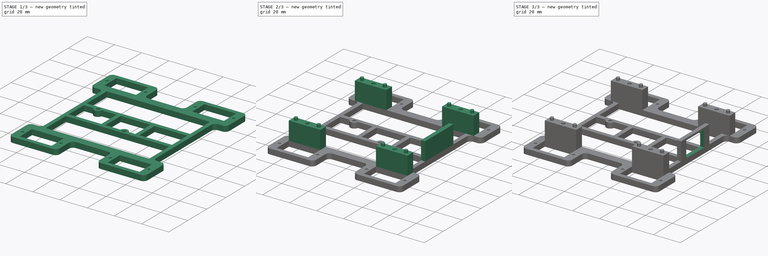
[diagram: build sequence overview — one tinted view per stage of 3, left to right]
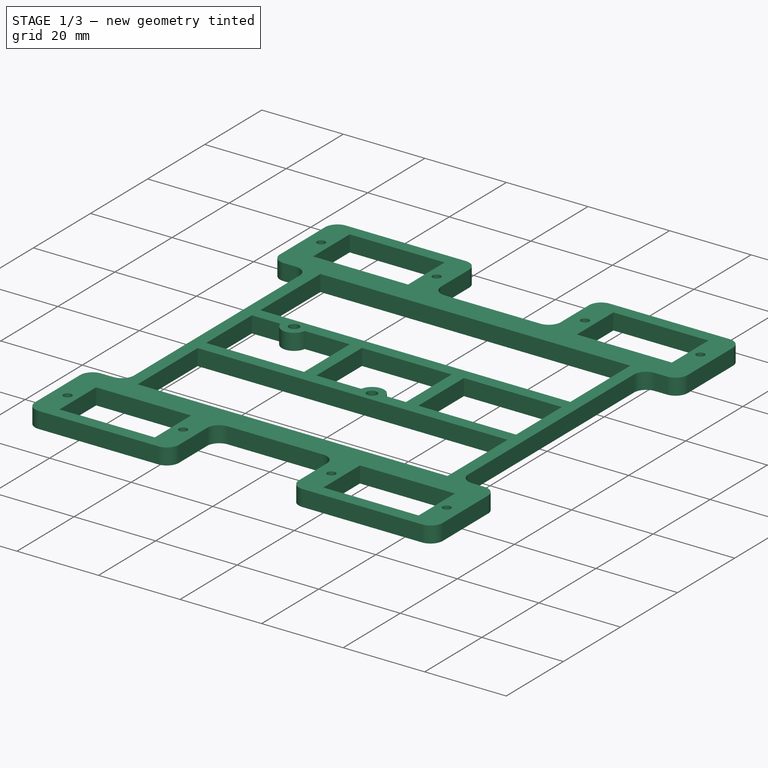
[diagram: stage 1 of 3 — iso view after this stage's code; geometry added in this stage tinted green]
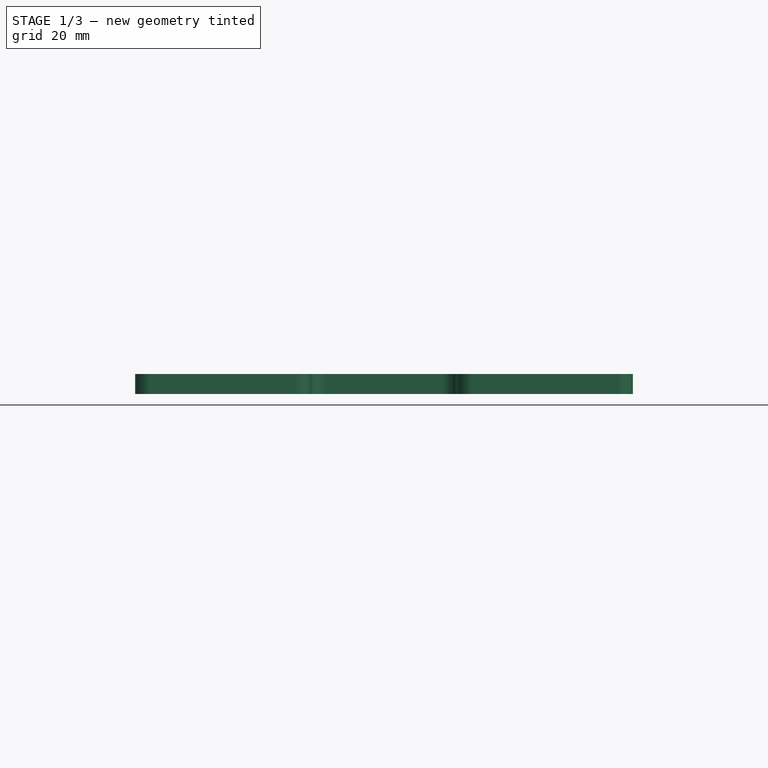
[diagram: stage 1 of 3 — front view after this stage's code; geometry added in this stage tinted green]
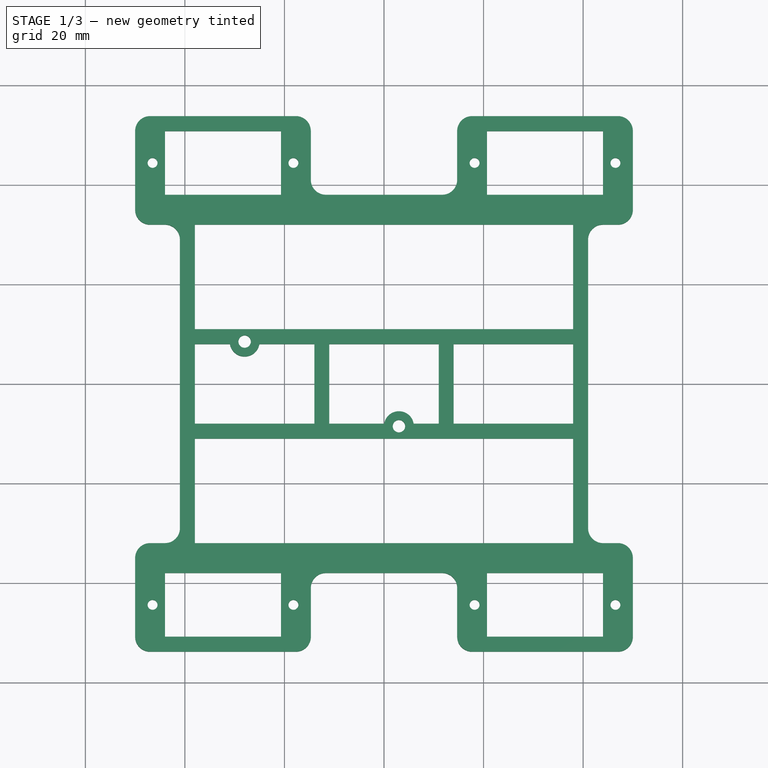
[diagram: stage 1 of 3 — top view after this stage's code; geometry added in this stage tinted green]
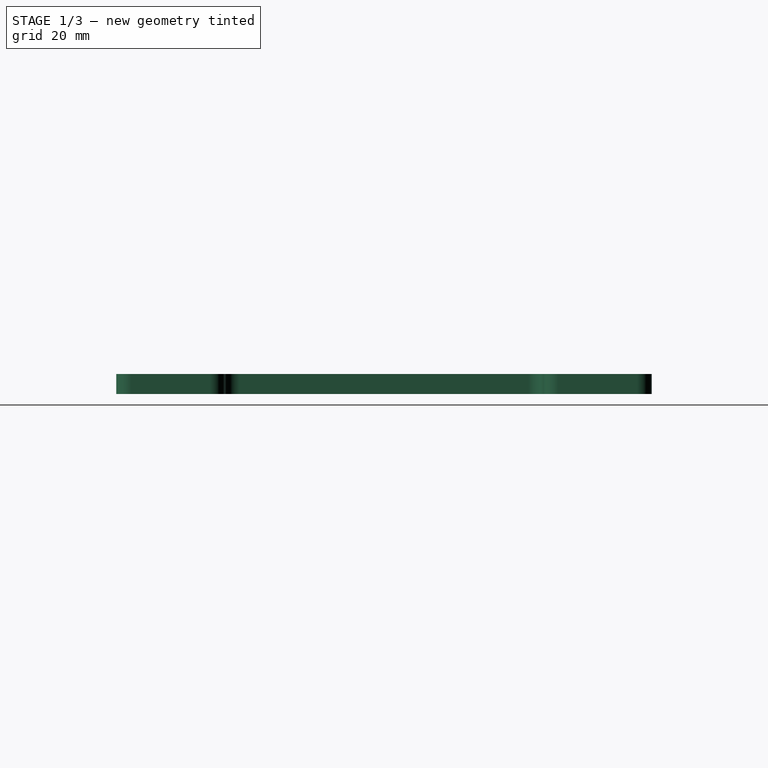
[diagram: stage 1 of 3 — right view after this stage's code; geometry added in this stage tinted green]
FCSTD DOCUMENT  (FreeCAD 0.21R33771 (Git))
Label: Шаси основа
License: All rights reserved
LicenseURL: https://en.wikipedia.org/wiki/All_rights_reserved
objects: Sketcher::SketchObject×7, PartDesign::Pocket×4, PartDesign::Pad×3, PartDesign::Body×1
note: 22 computed .brp shape members not serialized (recipe doc carries the construction recipe); baked Part::Feature solids carry a one-line shape summary decoded from their .brp

FEATURE [Sketcher::SketchObject] Sketch  label="Основа чертеж"
  FullyConstrained = true
  MapMode = 5
  Support = -> [XY_Plane]
  sketch-geometry (91):
    g0: LineSegment StartX=-11.7 StartY=38 StartZ=0 EndX=11.7 EndY=38 EndZ=0
    g1: LineSegment StartX=14.7 StartY=41 StartZ=0 EndX=14.7 EndY=50.8 EndZ=0
    g2: LineSegment StartX=17.7 StartY=53.8 StartZ=0 EndX=47 EndY=53.8 EndZ=0
    g3: LineSegment StartX=47 StartY=-53.8 StartZ=0 EndX=17.7 EndY=-53.8 EndZ=0
    g4: LineSegment StartX=14.7 StartY=-50.8 StartZ=0 EndX=14.7 EndY=-41 EndZ=0
    g5: LineSegment StartX=11.7 StartY=-38 StartZ=0 EndX=-11.7 EndY=-38 EndZ=0
    g6: LineSegment StartX=-14.7 StartY=-41 StartZ=0 EndX=-14.7 EndY=-50.8 EndZ=0
    g7: LineSegment StartX=-17.7 StartY=-53.8 StartZ=0 EndX=-47 EndY=-53.8 EndZ=0
    g8: LineSegment StartX=-47 StartY=53.8 StartZ=0 EndX=-17.7 EndY=53.8 EndZ=0
    g9: LineSegment StartX=-14.7 StartY=50.8 StartZ=0 EndX=-14.7 EndY=41 EndZ=0
    g10: ArcOfCircle CenterX=-17.7 CenterY=-50.8 CenterZ=0 NormalX=0 NormalY=0 NormalZ=1 AngleXU=0 Radius=3 StartAngle=4.71239 EndAngle=6.28319
    g11: ArcOfCircle CenterX=17.7 CenterY=-50.8 CenterZ=0 NormalX=0 NormalY=0 NormalZ=1 AngleXU=0 Radius=3 StartAngle=3.14159 EndAngle=4.71239
    g12: ArcOfCircle CenterX=11.7 CenterY=-41 CenterZ=0 NormalX=0 NormalY=0 NormalZ=1 AngleXU=0 Radius=3 StartAngle=3e-16 EndAngle=1.5708
    g13: ArcOfCircle CenterX=-11.7 CenterY=-41 CenterZ=0 NormalX=0 NormalY=0 NormalZ=1 AngleXU=0 Radius=3 StartAngle=1.5708 EndAngle=3.14159
    g14: ArcOfCircle CenterX=-11.7 CenterY=41 CenterZ=0 NormalX=0 NormalY=0 NormalZ=1 AngleXU=0 Radius=3 StartAngle=3.14159 EndAngle=4.71239
    g15: ArcOfCircle CenterX=11.7 CenterY=41 CenterZ=0 NormalX=0 NormalY=0 NormalZ=1 AngleXU=0 Radius=3 StartAngle=4.71239 EndAngle=6.28319
    g16: ArcOfCircle CenterX=-17.7 CenterY=50.8 CenterZ=0 NormalX=0 NormalY=0 NormalZ=1 AngleXU=0 Radius=3 StartAngle=3e-16 EndAngle=1.5708
    g17: ArcOfCircle CenterX=17.7 CenterY=50.8 CenterZ=0 NormalX=0 NormalY=0 NormalZ=1 AngleXU=0 Radius=3 StartAngle=1.5708 EndAngle=3.14159
    g18: ArcOfCircle CenterX=47 CenterY=50.8 CenterZ=0 NormalX=0 NormalY=0 NormalZ=1 AngleXU=0 Radius=3 StartAngle=6.97719e-09 EndAngle=1.5708
    g19: LineSegment StartX=-44 StartY=50.8 StartZ=0 EndX=-20.7 EndY=50.8 EndZ=0
    g20: LineSegment StartX=-20.7 StartY=50.8 StartZ=0 EndX=-20.7 EndY=38 EndZ=0
    g21: LineSegment StartX=-20.7 StartY=38 StartZ=0 EndX=-44 EndY=38 EndZ=0
    g22: LineSegment StartX=-44 StartY=38 StartZ=0 EndX=-44 EndY=50.8 EndZ=0
    g23: Circle CenterX=-46.5 CenterY=44.4 CenterZ=0 NormalX=0 NormalY=0 NormalZ=1 AngleXU=0 Radius=1
    g24: Circle CenterX=-18.2 CenterY=44.4 CenterZ=0 NormalX=0 NormalY=0 NormalZ=1 AngleXU=0 Radius=1
    g25: LineSegment StartX=20.7 StartY=50.8 StartZ=0 EndX=44 EndY=50.8 EndZ=0
    g26: LineSegment StartX=44 StartY=50.8 StartZ=0 EndX=44 EndY=38 EndZ=0
    g27: LineSegment StartX=44 StartY=38 StartZ=0 EndX=20.7 EndY=38 EndZ=0
    g28: LineSegment StartX=20.7 StartY=38 StartZ=0 EndX=20.7 EndY=50.8 EndZ=0
    g29: Circle CenterX=18.2 CenterY=44.4 CenterZ=0 NormalX=0 NormalY=0 NormalZ=1 AngleXU=0 Radius=1
    g30: Circle CenterX=46.5 CenterY=44.4 CenterZ=0 NormalX=0 NormalY=0 NormalZ=1 AngleXU=0 Radius=1
    g31: LineSegment StartX=20.7 StartY=-38 StartZ=0 EndX=44 EndY=-38 EndZ=0
    g32: LineSegment StartX=44 StartY=-38 StartZ=0 EndX=44 EndY=-50.8 EndZ=0
    g33: LineSegment StartX=44 StartY=-50.8 StartZ=0 EndX=20.7 EndY=-50.8 EndZ=0
    g34: LineSegment StartX=20.7 StartY=-50.8 StartZ=0 EndX=20.7 EndY=-38 EndZ=0
    g35: LineSegment StartX=-44 StartY=-38 StartZ=0 EndX=-20.7 EndY=-38 EndZ=0
    g36: LineSegment StartX=-20.7 StartY=-38 StartZ=0 EndX=-20.7 EndY=-50.8 EndZ=0
    g37: LineSegment StartX=-20.7 StartY=-50.8 StartZ=0 EndX=-44 EndY=-50.8 EndZ=0
    g38: LineSegment StartX=-44 StartY=-50.8 StartZ=0 EndX=-44 EndY=-38 EndZ=0
    g39: Circle CenterX=-46.5 CenterY=-44.4 CenterZ=0 NormalX=0 NormalY=0 NormalZ=1 AngleXU=0 Radius=1
    g40: Circle CenterX=-18.2 CenterY=-44.4 CenterZ=0 NormalX=0 NormalY=0 NormalZ=1 AngleXU=0 Radius=1
    g41: Circle CenterX=18.2 CenterY=-44.4 CenterZ=0 NormalX=0 NormalY=0 NormalZ=1 AngleXU=0 Radius=1
    g42: Circle CenterX=46.5 CenterY=-44.4 CenterZ=0 NormalX=0 NormalY=0 NormalZ=1 AngleXU=0 Radius=1
    g43: LineSegment StartX=-50 StartY=50.8 StartZ=0 EndX=-50 EndY=35 EndZ=0
    g44: LineSegment StartX=50 StartY=50.8 StartZ=0 EndX=50 EndY=35 EndZ=0
    g45: ArcOfCircle CenterX=-47 CenterY=50.8 CenterZ=0 NormalX=0 NormalY=0 NormalZ=1 AngleXU=0 Radius=3 StartAngle=1.5708 EndAngle=3.14159
    g46: ArcOfCircle CenterX=-47 CenterY=-50.8 CenterZ=0 NormalX=0 NormalY=0 NormalZ=1 AngleXU=0 Radius=3 StartAngle=3.14159 EndAngle=4.71239
    g47: ArcOfCircle CenterX=47 CenterY=-50.8 CenterZ=0 NormalX=0 NormalY=0 NormalZ=1 AngleXU=0 Radius=3 StartAngle=4.71239 EndAngle=6.28319
    g48: LineSegment StartX=38 StartY=11 StartZ=0 EndX=38 EndY=32 EndZ=0
    g49: LineSegment StartX=38 StartY=32 StartZ=0 EndX=-38 EndY=32 EndZ=0
    g50: LineSegment StartX=-38 StartY=32 StartZ=0 EndX=-38 EndY=11 EndZ=0
    g51: LineSegment StartX=-38 StartY=11 StartZ=0 EndX=38 EndY=11 EndZ=0
    g52: GeomPoint X=0 Y=21.5 Z=0
    g53: LineSegment StartX=38 StartY=-11 StartZ=0 EndX=38 EndY=-32 EndZ=0
    g54: LineSegment StartX=38 StartY=-32 StartZ=0 EndX=-38 EndY=-32 EndZ=0
    g55: LineSegment StartX=-38 StartY=-32 StartZ=0 EndX=-38 EndY=-11 EndZ=0
    g56: LineSegment StartX=-38 StartY=-11 StartZ=0 EndX=38 EndY=-11 EndZ=0
    g57: GeomPoint X=0 Y=-21.5 Z=0
    g58: LineSegment StartX=-41 StartY=-29 StartZ=0 EndX=-41 EndY=29 EndZ=0
    g59: LineSegment StartX=-44 StartY=32 StartZ=0 EndX=-47 EndY=32 EndZ=0
    g60: LineSegment StartX=-47 StartY=-32 StartZ=0 EndX=-44 EndY=-32 EndZ=0
    g61: LineSegment StartX=41 StartY=29 StartZ=0 EndX=41 EndY=-29 EndZ=0
    g62: LineSegment StartX=44 StartY=-32 StartZ=0 EndX=47 EndY=-32 EndZ=0
    g63: LineSegment StartX=47 StartY=32 StartZ=0 EndX=44 EndY=32 EndZ=0
    g64: LineSegment StartX=-50 StartY=-35 StartZ=0 EndX=-50 EndY=-50.8 EndZ=0
    g65: LineSegment StartX=50 StartY=-35 StartZ=0 EndX=50 EndY=-50.8 EndZ=0
    g66: ArcOfCircle CenterX=47 CenterY=35 CenterZ=0 NormalX=0 NormalY=0 NormalZ=1 AngleXU=0 Radius=3 StartAngle=4.71239 EndAngle=6.28319
    g67: ArcOfCircle CenterX=47 CenterY=-35 CenterZ=0 NormalX=0 NormalY=0 NormalZ=1 AngleXU=0 Radius=3 StartAngle=3e-16 EndAngle=1.5708
    g68: ArcOfCircle CenterX=44 CenterY=-29 CenterZ=0 NormalX=0 NormalY=0 NormalZ=1 AngleXU=0 Radius=3 StartAngle=3.14159 EndAngle=4.71239
    g69: ArcOfCircle CenterX=44 CenterY=29 CenterZ=0 NormalX=0 NormalY=0 NormalZ=1 AngleXU=0 Radius=3 StartAngle=1.5708 EndAngle=3.14159
    g70: ArcOfCircle CenterX=-47 CenterY=35 CenterZ=0 NormalX=0 NormalY=0 NormalZ=1 AngleXU=0 Radius=3 StartAngle=3.14159 EndAngle=4.71239
    g71: ArcOfCircle CenterX=-44 CenterY=29 CenterZ=0 NormalX=0 NormalY=0 NormalZ=1 AngleXU=0 Radius=3 StartAngle=2e-16 EndAngle=1.5708
    g72: ArcOfCircle CenterX=-44 CenterY=-29 CenterZ=0 NormalX=0 NormalY=0 NormalZ=1 AngleXU=0 Radius=3 StartAngle=4.71239 EndAngle=6.28319
    g73: ArcOfCircle CenterX=-47 CenterY=-35 CenterZ=0 NormalX=0 NormalY=0 NormalZ=1 AngleXU=0 Radius=3 StartAngle=1.5708 EndAngle=3.14159
    g74: LineSegment StartX=38 StartY=-8 StartZ=0 EndX=38 EndY=8 EndZ=0
    g75: LineSegment StartX=38 StartY=8 StartZ=0 EndX=14 EndY=8 EndZ=0
    g76: LineSegment StartX=-38 StartY=8 StartZ=0 EndX=-38 EndY=-8 EndZ=0
    g77: LineSegment StartX=-38 StartY=-8 StartZ=0 EndX=-14 EndY=-8 EndZ=0
    g78: GeomPoint X=0 Y=0 Z=0
    g79: ArcOfCircle CenterX=-28 CenterY=8.5 CenterZ=0 NormalX=0 NormalY=0 NormalZ=1 AngleXU=0 Radius=3 StartAngle=3.30904 EndAngle=6.11574
    g80: LineSegment StartX=-30.958 StartY=8 StartZ=0 EndX=-38 EndY=8 EndZ=0
    g81: ArcOfCircle CenterX=3 CenterY=-8.5 CenterZ=0 NormalX=0 NormalY=0 NormalZ=1 AngleXU=0 Radius=3 StartAngle=0.167448 EndAngle=2.97414
    g82: LineSegment StartX=5.95804 StartY=-8 StartZ=0 EndX=11 EndY=-8 EndZ=0
    g83: LineSegment StartX=-11 StartY=8 StartZ=0 EndX=-11 EndY=-8 EndZ=0
    g84: LineSegment StartX=-14 StartY=-8 StartZ=0 EndX=-14 EndY=8 EndZ=0
    g85: LineSegment StartX=14 StartY=8 StartZ=0 EndX=14 EndY=-8 EndZ=0
    g86: LineSegment StartX=11 StartY=-8 StartZ=0 EndX=11 EndY=8 EndZ=0
    g87: LineSegment StartX=-14 StartY=8 StartZ=0 EndX=-25.042 EndY=8 EndZ=0
    g88: LineSegment StartX=-11 StartY=-8 StartZ=0 EndX=0.0419601 EndY=-8 EndZ=0
    g89: LineSegment StartX=11 StartY=8 StartZ=0 EndX=-11 EndY=8 EndZ=0
    g90: LineSegment StartX=14 StartY=-8 StartZ=0 EndX=38 EndY=-8 EndZ=0
  constraints (251):
    c: Horizontal(g0)
    c: Vertical(g1)
    c: Horizontal(g2)
    c: Horizontal(g3)
    c: Vertical(g4)
    c: Horizontal(g5)
    c: Vertical(g6)
    c: Horizontal(g7)
    c: Horizontal(g8)
    c: Vertical(g9)
    c: Tangent(g7,g10) = 1.5708
    c: Tangent(g6,g10) = 1.5708
    c: Tangent(g4,g11) = 1.5708
    c: Tangent(g3,g11) = 1.5708
    c: Tangent(g5,g12) = -1.5708
    c: Tangent(g4,g12) = -1.5708
    c: Tangent(g5,g13) = -1.5708
    c: Tangent(g6,g13) = -1.5708
    c: Tangent(g9,g14) = -1.5708
    c: Tangent(g0,g14) = -1.5708
    c: Tangent(g0,g15) = -1.5708
    c: Tangent(g1,g15) = -1.5708
    c: Tangent(g8,g16) = 1.5708
    c: Tangent(g9,g16) = 1.5708
    c: Tangent(g1,g17) = 1.5708
    c: Tangent(g2,g17) = 1.5708
    c: Tangent(g2,g18) = 1.5708
    c: DistanceY(g5,g0) = 76
    c: DistanceY(g-1,g0) = 38
    c: Coincident(g19,g20)
    c: Coincident(g20,g21)
    c: Coincident(g21,g22)
    c: Coincident(g22,g19)
    c: Horizontal(g19)
    c: Horizontal(g21)
    c: Vertical(g20)
    c: Vertical(g22)
    c: DistanceX(g19,g19) = 23.3
    c: DistanceY(g20,g20) = 12.8
    c: DistanceY(g21,g23) = 6.4
    c: DistanceY(g20,g24) = 6.4
    c: DistanceX(g20,g24) = 2.5
    c: DistanceX(g23,g21) = 2.5
    c: Radius(g23) = 1
    c: Coincident(g25,g26)
    c: Coincident(g26,g27)
    c: Coincident(g27,g28)
    c: Coincident(g28,g25)
    c: Horizontal(g25)
    c: Horizontal(g27)
    c: Vertical(g26)
    c: Vertical(g28)
    c: Radius(g29) = 1
    c: DistanceX(g29,g27) = 2.5
    c: DistanceX(g26,g30) = 2.5
    c: Coincident(g31,g32)
    c: Coincident(g32,g33)
    c: Coincident(g33,g34)
    c: Coincident(g34,g31)
    c: Horizontal(g31)
    c: Horizontal(g33)
    c: Vertical(g32)
    c: Vertical(g34)
    c: Coincident(g35,g36)
    c: Coincident(g36,g37)
    c: Coincident(g37,g38)
    c: Coincident(g38,g35)
    c: Horizontal(g35)
    c: Horizontal(g37)
    c: Vertical(g36)
    c: Vertical(g38)
    c: DistanceY(g35,g5) = 0
    c: DistanceX(g35,g6) = 6
    c: Diameter(g39) = 2
    c: DistanceY(g39,g35) = 6.4
    c: DistanceY(g40,g35) = 6.4
    c: DistanceX(g35,g40) = 2.5
    c: DistanceX(g39,g35) = 2.5
    c: DistanceY(g41,g31) = 6.4
    c: DistanceX(g41,g31) = 2.5
    c: DistanceY(g42,g31) = 6.4
    c: DistanceX(g31,g42) = 2.5
    c: Vertical(g43)
    c: Coincident(g44,g18)
    c: Vertical(g44)
    c: Radius(g24) = 1
    c: DistanceX(g20,g-1) = 20.7
    c: DistanceY(g-1,g20) = 38
    c: DistanceX(g9,g-1) = 14.7
    c: DistanceY(g19,g8) = 3
    c: Radius(g16) = 3
    c: Radius(g14) = 3
    c: Tangent(g43,g45) = -1.5708
    c: Tangent(g8,g45) = 1.5708
    c: Radius(g45) = 3
    c: DistanceX(g43,g9) = 35.3
    c: Radius(g15) = 3
    c: Radius(g17) = 3
    c: Radius(g18) = 3
    c: DistanceX(g25,g18) = 6
    c: DistanceY(g25,g2) = 3
    c: DistanceX(g1,g25) = 6
    c: Equal(g25,g19)
    c: Equal(g20,g26)
    c: DistanceX(g-1,g1) = 14.7
    c: DistanceY(g-1,g27) = 38
    c: Equal(g8,g2)
    c: DistanceY(g27,g29) = 6.4
    c: DistanceY(g26,g30) = 6.4
    c: Radius(g30) = 1
    c: Equal(g31,g21)
    c: Equal(g21,g35)
    c: Equal(g38,g34)
    c: Equal(g34,g28)
    c: Tangent(g7,g46) = 1.5708
    c: Coincident(g64,g46) = -1.5708
    c: Radius(g46) = 3
    c: DistanceX(g6,g-1) = 14.7
    c: DistanceY(g7,g37) = 3
    c: Radius(g10) = 3
    c: Radius(g13) = 3
    c: Radius(g40) = 1
    c: Radius(g11) = 3
    c: DistanceX(g-1,g4) = 14.7
    c: Radius(g12) = 3
    c: DistanceY(g31,g5) = 0
    c: DistanceX(g4,g31) = 6
    c: DistanceY(g3,g33) = 3
    c: Radius(g41) = 1
    c: Radius(g42) = 1
    c: Tangent(g3,g47) = 1.5708
    c: Coincident(g65,g47) = 1.5708
    c: Radius(g47) = 3
    c: Coincident(g48,g49)
    c: Coincident(g49,g50)
    c: Coincident(g50,g51)
    c: Coincident(g51,g48)
    c: Horizontal(g49)
    c: Horizontal(g51)
    c: Vertical(g48)
    c: Vertical(g50)
    c: Symmetric(g49,g48,g52)
    c: PointOnObject(g52,g-2)
    c: Coincident(g53,g54)
    c: Coincident(g54,g55)
    c: Coincident(g55,g56)
    c: Coincident(g56,g53)
    c: Horizontal(g54)
    c: Horizontal(g56)
    c: Vertical(g53)
    c: Vertical(g55)
    c: Symmetric(g54,g53,g57)
    c: PointOnObject(g57,g-2)
    c: DistanceX(g49,g49) = 76
    c: DistanceY(g48,g48) = 21
    c: DistanceY(g-1,g49) = 32
    c: DistanceY(g54,g-1) = 32
    c: DistanceY(g55,g55) = 21
    c: DistanceX(g56,g56) = 76
    c: Horizontal(g59)
    c: Horizontal(g60)
    c: Vertical(g58)
    c: Horizontal(g62)
    c: Horizontal(g63)
    c: Vertical(g61)
    c: Tangent(g63,g66) = 1.5708
    c: Tangent(g44,g66) = 1.5708
    c: Radius(g66) = 3
    c: Tangent(g62,g67) = 1.5708
    c: Tangent(g65,g67) = 1.5708
    c: Radius(g67) = 3
    c: Vertical(g65)
    c: Tangent(g62,g68) = -1.5708
    c: Tangent(g61,g68) = -1.5708
    c: Tangent(g63,g69) = -1.5708
    c: Tangent(g61,g69) = -1.5708
    c: Tangent(g43,g70) = -1.5708
    c: Tangent(g59,g70) = 1.5708
    c: Tangent(g59,g71) = -1.5708
    c: Tangent(g58,g71) = -1.5708
    c: Radius(g70) = 3
    c: Radius(g71) = 3
    c: Tangent(g58,g72) = -1.5708
    c: Tangent(g60,g72) = -1.5708
    c: Tangent(g60,g73) = 1.5708
    c: Tangent(g64,g73) = -1.5708
    c: Radius(g72) = 3
    c: Radius(g73) = 3
    c: Vertical(g64)
    c: DistanceY(g59,g21) = 6
    c: DistanceX(g58,g49) = 3
    c: DistanceY(g60,g-1) = 32
    c: DistanceX(g64,g35) = 6
    c: DistanceY(g-1,g63) = 32
    c: DistanceX(g48,g61) = 3
    c: Radius(g69) = 3
    c: Radius(g68) = 3
    c: DistanceY(g62,g-1) = 32
    c: DistanceX(g31,g65) = 6
    c: DistanceX(g-1,g3) = 47
    c: DistanceX(g7,g-1) = 47
    c: Coincident(g74,g75)
    c: Coincident(g80,g76)
    c: Coincident(g76,g77)
    c: Coincident(g90,g74)
    c: Horizontal(g75)
    c: Horizontal(g77)
    c: Vertical(g74)
    c: Vertical(g76)
    c: Symmetric(g80,g74,g78)
    c: Coincident(g78,g-1)
    c: DistanceX(g58,g80) = 3
    c: DistanceY(g80,g50) = 3
    c: DistanceY(g-1,g79) = 8.5
    c: DistanceX(g80,g79) = 10
    c: Radius(g79) = 3
    c: Coincident(g87,g79)
    c: Coincident(g80,g79)
    c: Coincident(g88,g81)
    c: Coincident(g82,g81)
    c: DistanceY(g55,g76) = 3
    c: Horizontal(g80)
    c: DistanceY(g74,g48) = 3
    c: Horizontal(g82)
    c: Radius(g81) = 3
    c: DistanceY(g81,g-1) = 8.5
    c: DistanceX(g79,g81) = 31
    c: Vertical(g83)
    c: Vertical(g84)
    c: Vertical(g85)
    c: Vertical(g86)
    c: DistanceX(g84,g83) = 3
    c: DistanceX(g86,g85) = 3
    c: DistanceX(g76,g84) = 24
    c: DistanceX(g85,g74) = 24
    c: Coincident(g88,g83)
    c: Coincident(g90,g85)
    c: Horizontal(g90)
    c: Coincident(g85,g75)
    c: Coincident(g86,g89)
    c: Horizontal(g89)
    c: Coincident(g83,g89)
    c: DistanceY(g86,g48) = 3
    c: Equal(g86,g85)
    c: Equal(g83,g86)
    c: Horizontal(g88)
    c: Coincident(g82,g86)
    c: Coincident(g77,g84)
    c: Coincident(g84,g87)
    c: Horizontal(g87)
    c: DistanceY(g-1,g84) = 8
FEATURE [PartDesign::Pad] Pad  label="Основа"
  Direction = (0,0,1)
  Length = 4
  Length2 = 10
  Profile = -> Sketch
  ReferenceAxis = -> Sketch [N_Axis]
  Type = 0
FEATURE [Sketcher::SketchObject] Sketch005  label="отвори за DC-DC преубразувател - чертеж"
  FullyConstrained = true
  MapMode = 5
  Placement = pos=(0,0,4) rot=(0,0,1;0rad)
  sketch-geometry (2):
    g0: Circle CenterX=3 CenterY=-8.5 CenterZ=0 NormalX=0 NormalY=0 NormalZ=1 AngleXU=0 Radius=1.25
    g1: Circle CenterX=-28 CenterY=8.5 CenterZ=0 NormalX=0 NormalY=0 NormalZ=1 AngleXU=0 Radius=1.25
  constraints (6):
    c: Equal(g0,g1)
    c: Diameter(g0) = 2.5
    c: DistanceX(g1,g-1) = 28
    c: DistanceY(g0,g-1) = 8.5
    c: DistanceY(g-1,g1) = 8.5
    c: DistanceX(g1,g0) = 31
FEATURE [Sketcher::SketchObject] Sketch008  label="Крепежен отвор на колонките на сервата - чертеж"
  FullyConstrained = true
  MapMode = 5
  Placement = pos=(0,0,17.5) rot=(0,0,1;0rad)
  sketch-geometry (4):
    g0: Circle CenterX=-32.35 CenterY=35 CenterZ=0 NormalX=0 NormalY=0 NormalZ=1 AngleXU=0 Radius=1.4
    g1: Circle CenterX=32.35 CenterY=35 CenterZ=0 NormalX=0 NormalY=0 NormalZ=1 AngleXU=0 Radius=1.4
    g2: Circle CenterX=-32.35 CenterY=-35 CenterZ=0 NormalX=0 NormalY=0 NormalZ=1 AngleXU=0 Radius=1.4
    g3: Circle CenterX=32.35 CenterY=-35 CenterZ=0 NormalX=0 NormalY=0 NormalZ=1 AngleXU=0 Radius=1.4
  constraints (9):
    c: Equal(g3,g2)
    c: Equal(g2,g0)
    c: Equal(g0,g1)
    c: Diameter(g1) = 2.8
    c: DistanceX(g0,g-1) = 32.35
    c: DistanceY(g-1,g0) = 35
    c: Symmetric(g0,g1,g-2)
    c: Symmetric(g0,g2,g-1)
    c: Symmetric(g2,g3,g-2)
FEATURE [PartDesign::Pocket] Pocket001  label="отвори за DC-DC преубразувател"
  BaseFeature = -> Pad
  Direction = (0,0,-1)
  Length = 5
  Length2 = 5
  Profile = -> Sketch005
  ReferenceAxis = -> Sketch005 [N_Axis]
  Type = 0
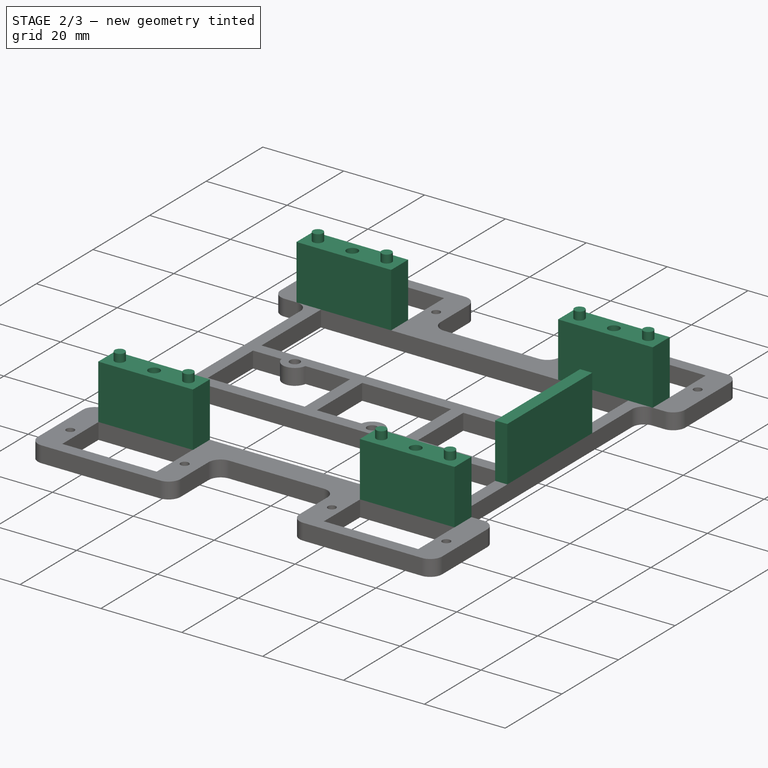
[diagram: stage 2 of 3 — iso view after this stage's code; geometry added in this stage tinted green]
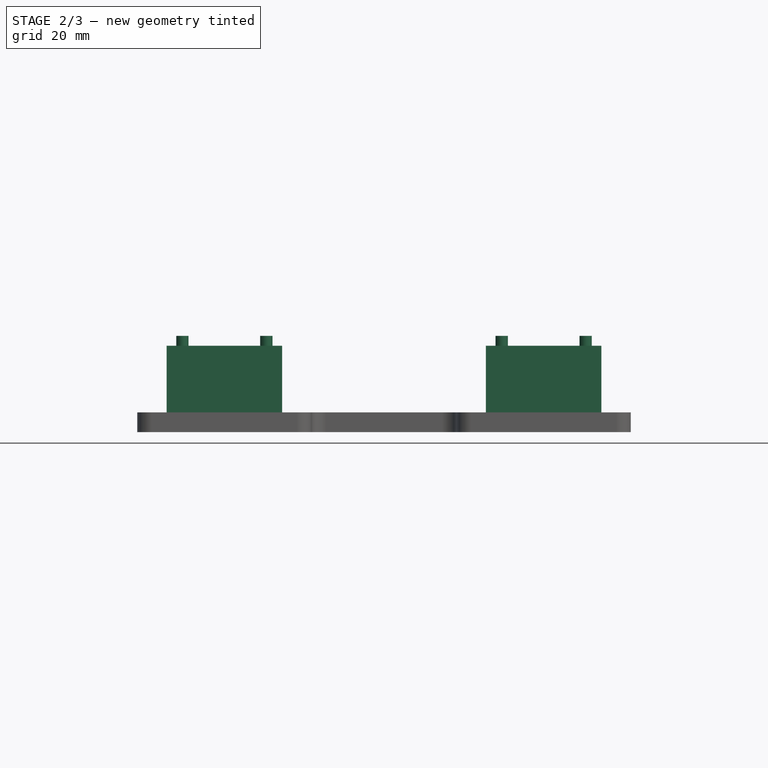
[diagram: stage 2 of 3 — front view after this stage's code; geometry added in this stage tinted green]
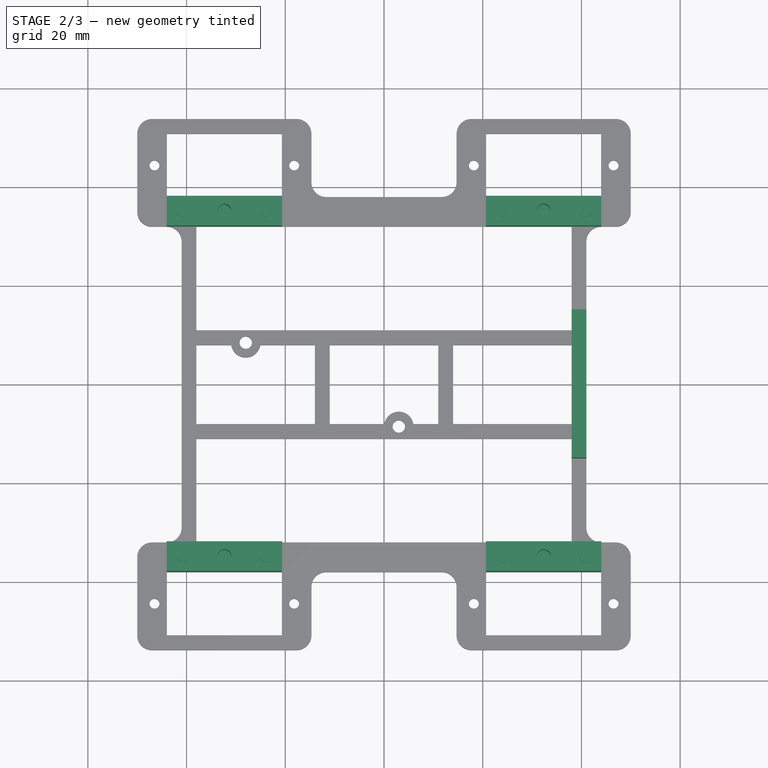
[diagram: stage 2 of 3 — top view after this stage's code; geometry added in this stage tinted green]
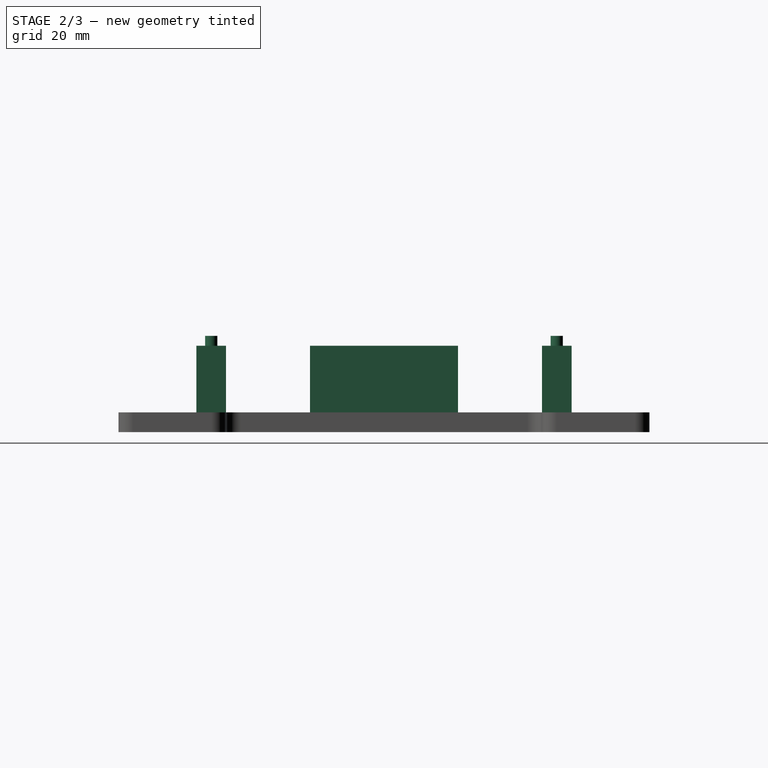
[diagram: stage 2 of 3 — right view after this stage's code; geometry added in this stage tinted green]
FEATURE [Sketcher::SketchObject] Sketch002  label="Колонки серво - чертеж"
  FullyConstrained = true
  MapMode = 5
  Placement = pos=(0,0,4) rot=(0,0,1;0rad)
  Support = -> [Pocket001]
  sketch-geometry (21):
    g0: LineSegment StartX=-44.05 StartY=38 StartZ=0 EndX=-20.65 EndY=38 EndZ=0
    g1: LineSegment StartX=-20.65 StartY=38 StartZ=0 EndX=-20.65 EndY=32 EndZ=0
    g2: LineSegment StartX=-20.65 StartY=32 StartZ=0 EndX=-44.05 EndY=32 EndZ=0
    g3: LineSegment StartX=-44.05 StartY=32 StartZ=0 EndX=-44.05 EndY=38 EndZ=0
    g4: LineSegment StartX=20.65 StartY=38 StartZ=0 EndX=44.05 EndY=38 EndZ=0
    g5: LineSegment StartX=44.05 StartY=38 StartZ=0 EndX=44.05 EndY=32 EndZ=0
    g6: LineSegment StartX=44.05 StartY=32 StartZ=0 EndX=20.65 EndY=32 EndZ=0
    g7: LineSegment StartX=20.65 StartY=32 StartZ=0 EndX=20.65 EndY=38 EndZ=0
    g8: LineSegment StartX=-44.05 StartY=-32 StartZ=0 EndX=-20.65 EndY=-32 EndZ=0
    g9: LineSegment StartX=-20.65 StartY=-32 StartZ=0 EndX=-20.65 EndY=-38 EndZ=0
    g10: LineSegment StartX=-20.65 StartY=-38 StartZ=0 EndX=-44.05 EndY=-38 EndZ=0
    g11: LineSegment StartX=-44.05 StartY=-38 StartZ=0 EndX=-44.05 EndY=-32 EndZ=0
    g12: LineSegment StartX=20.65 StartY=-32 StartZ=0 EndX=44.05 EndY=-32 EndZ=0
    g13: LineSegment StartX=44.05 StartY=-32 StartZ=0 EndX=44.05 EndY=-38 EndZ=0
    g14: LineSegment StartX=44.05 StartY=-38 StartZ=0 EndX=20.65 EndY=-38 EndZ=0
    g15: LineSegment StartX=20.65 StartY=-38 StartZ=0 EndX=20.65 EndY=-32 EndZ=0
    g16: LineSegment StartX=38 StartY=-15 StartZ=0 EndX=38 EndY=15 EndZ=0
    g17: LineSegment StartX=38 StartY=15 StartZ=0 EndX=41 EndY=15 EndZ=0
    g18: LineSegment StartX=41 StartY=15 StartZ=0 EndX=41 EndY=-15 EndZ=0
    g19: LineSegment StartX=41 StartY=-15 StartZ=0 EndX=38 EndY=-15 EndZ=0
    g20: GeomPoint X=39.5 Y=0 Z=0
  constraints (59):
    c: Coincident(g0,g1)
    c: Coincident(g1,g2)
    c: Coincident(g2,g3)
    c: Coincident(g3,g0)
    c: Horizontal(g0)
    c: Horizontal(g2)
    c: Vertical(g1)
    c: Vertical(g3)
    c: Coincident(g4,g5)
    c: Coincident(g5,g6)
    c: Coincident(g6,g7)
    c: Coincident(g7,g4)
    c: Horizontal(g4)
    c: Horizontal(g6)
    c: Vertical(g5)
    c: Vertical(g7)
    c: Coincident(g8,g9)
    c: Coincident(g9,g10)
    c: Coincident(g10,g11)
    c: Coincident(g11,g8)
    c: Horizontal(g8)
    c: Horizontal(g10)
    c: Vertical(g9)
    c: Vertical(g11)
    c: Coincident(g12,g13)
    c: Coincident(g13,g14)
    c: Coincident(g14,g15)
    c: Coincident(g15,g12)
    c: Horizontal(g12)
    c: Horizontal(g14)
    c: Vertical(g13)
    c: Vertical(g15)
    c: Equal(g1,g7)
    c: Equal(g7,g11)
    c: Equal(g11,g15)
    c: DistanceY(g3,g3) = 6
    c: Equal(g0,g4)
    c: Equal(g4,g12)
    c: Equal(g12,g8)
    c: DistanceX(g0,g0) = 23.4
    c: DistanceY(g-1,g0) = 38
    c: DistanceY(g-1,g4) = 38
    c: Symmetric(g8,g1,g-1)
    c: Symmetric(g4,g13,g-1)
    c: DistanceX(g2,g-1) = 44.05
    c: DistanceX(g-1,g5) = 44.05
    c: Coincident(g16,g17)
    c: Coincident(g17,g18)
    c: Coincident(g18,g19)
    c: Coincident(g19,g16)
    c: Horizontal(g17)
    c: Horizontal(g19)
    c: Vertical(g16)
    c: Vertical(g18)
    c: Symmetric(g17,g16,g20)
    c: PointOnObject(g20,g-1)
    c: DistanceX(g16,g17) = 3
    c: DistanceY(g18,g17) = 30
    c: DistanceX(g-1,g16) = 38
FEATURE [PartDesign::Pad] Pad001  label="Колонки серво"
  BaseFeature = -> Pocket001
  Direction = (0,0,1)
  Length = 13.5
  Length2 = 10
  Profile = -> Sketch002
  ReferenceAxis = -> Sketch002 [N_Axis]
  Type = 0
FEATURE [PartDesign::Pocket] Pocket  label="Крепежен отвор на колонките на сервата"
  BaseFeature = -> Pad001
  Direction = (0,0,-1)
  Length = 11
  Length2 = 5
  Profile = -> Sketch008
  ReferenceAxis = -> Sketch008 [N_Axis]
  Type = 0
FEATURE [Sketcher::SketchObject] Sketch007  label="штифтове на колонките на сервата - чертеж"
  FullyConstrained = true
  MapMode = 5
  Placement = pos=(0,0,17.5) rot=(0,0,1;0rad)
  Support = -> [Pocket]
  sketch-geometry (8):
    g0: Circle CenterX=-40.85 CenterY=35 CenterZ=0 NormalX=0 NormalY=0 NormalZ=1 AngleXU=0 Radius=1.25
    g1: Circle CenterX=-23.85 CenterY=35 CenterZ=0 NormalX=0 NormalY=0 NormalZ=1 AngleXU=0 Radius=1.25
    g2: Circle CenterX=23.85 CenterY=35 CenterZ=0 NormalX=0 NormalY=0 NormalZ=1 AngleXU=0 Radius=1.25
    g3: Circle CenterX=40.85 CenterY=35 CenterZ=0 NormalX=0 NormalY=0 NormalZ=1 AngleXU=0 Radius=1.25
    g4: Circle CenterX=-40.85 CenterY=-35 CenterZ=0 NormalX=0 NormalY=0 NormalZ=1 AngleXU=0 Radius=1.25
    g5: Circle CenterX=-23.85 CenterY=-35 CenterZ=0 NormalX=0 NormalY=0 NormalZ=1 AngleXU=0 Radius=1.25
    g6: Circle CenterX=23.85 CenterY=-35 CenterZ=0 NormalX=0 NormalY=0 NormalZ=1 AngleXU=0 Radius=1.25
    g7: Circle CenterX=40.85 CenterY=-35 CenterZ=0 NormalX=0 NormalY=0 NormalZ=1 AngleXU=0 Radius=1.25
  constraints (18):
    c: DistanceX(g0,g1) = 17
    c: DistanceY(g-1,g1) = 35
    c: Diameter(g1) = 2.5
    c: Equal(g1,g0)
    c: Equal(g0,g4)
    c: Equal(g4,g5)
    c: Equal(g5,g6)
    c: Equal(g6,g7)
    c: Equal(g7,g3)
    c: Equal(g3,g2)
    c: Symmetric(g1,g5,g-1)
    c: Symmetric(g1,g2,g-2)
    c: Symmetric(g2,g6,g-1)
    c: DistanceX(g0,g-1) = 40.85
    c: DistanceY(g-1,g0) = 35
    c: Symmetric(g0,g4,g-1)
    c: Symmetric(g0,g3,g-2)
    c: Symmetric(g4,g7,g-2)
FEATURE [PartDesign::Pad] Pad002  label="штифтове на колонките на сервата"
  BaseFeature = -> Pocket
  Direction = (0,0,1)
  Length = 2
  Length2 = 10
  Profile = -> Sketch007
  ReferenceAxis = -> Sketch007 [N_Axis]
  Type = 0
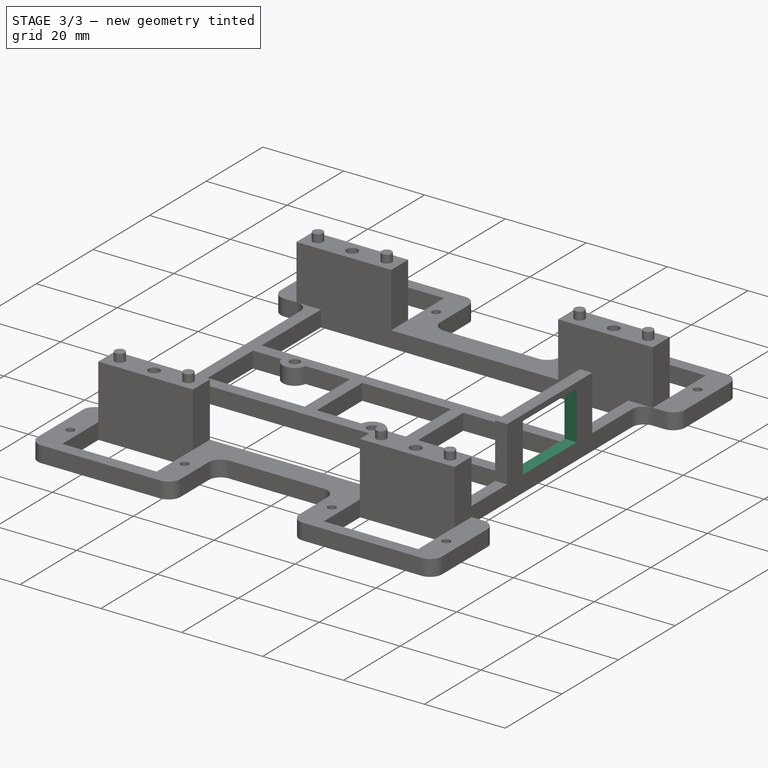
[diagram: stage 3 of 3 — iso view after this stage's code; geometry added in this stage tinted green]
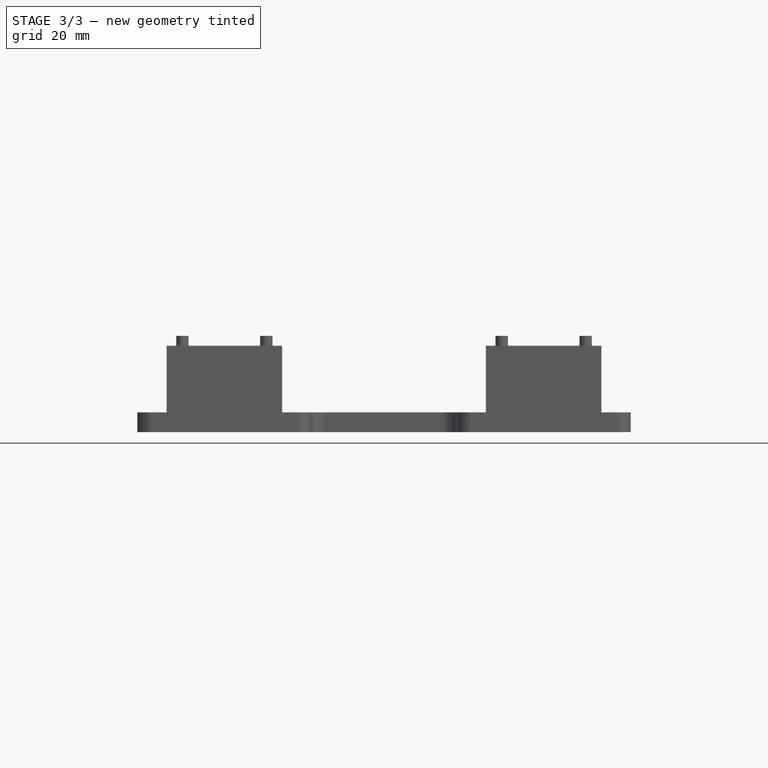
[diagram: stage 3 of 3 — front view after this stage's code; geometry added in this stage tinted green]
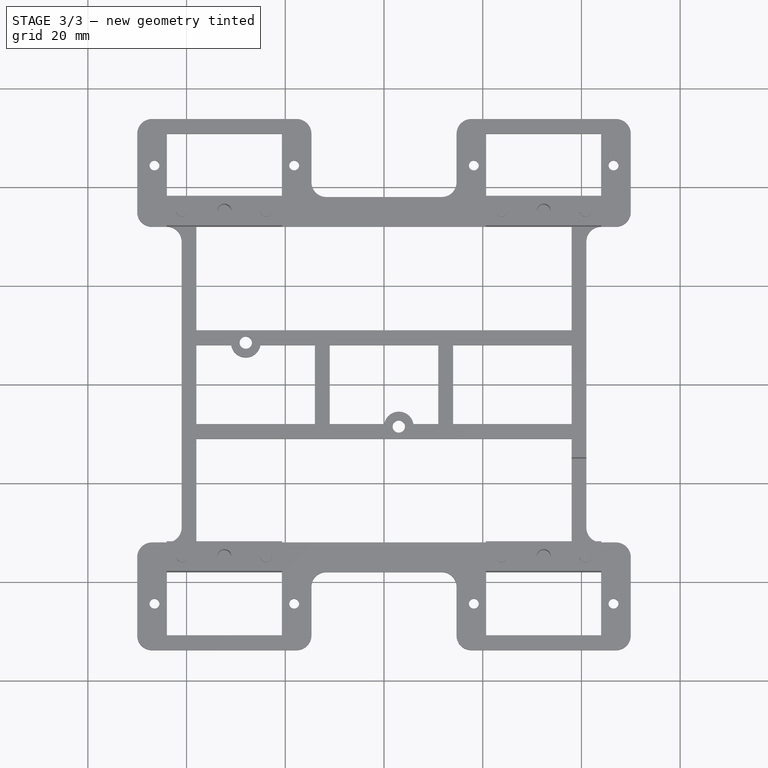
[diagram: stage 3 of 3 — top view after this stage's code; geometry added in this stage tinted green]
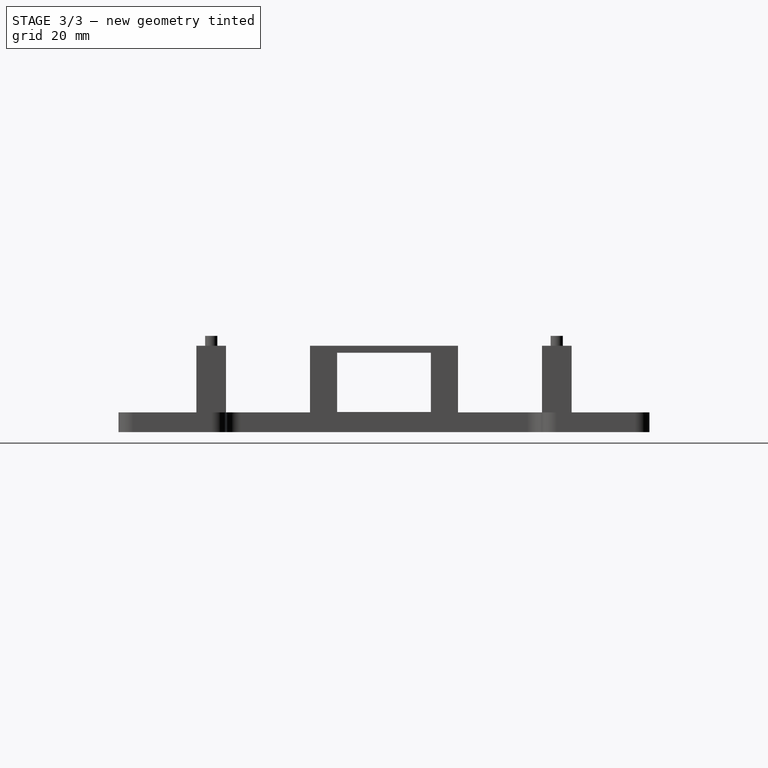
[diagram: stage 3 of 3 — right view after this stage's code; geometry added in this stage tinted green]
FEATURE [Sketcher::SketchObject] Sketch004  label="отвор за ключ - чертеж"
  FullyConstrained = true
  MapMode = 5
  Placement = pos=(41,0,0) rot=(0.57735,0.57735,0.57735;2.0944rad)
  Support = -> [Pad002]
  sketch-geometry (5):
    g0: LineSegment StartX=9.5 StartY=4.07 StartZ=0 EndX=9.5 EndY=16.07 EndZ=0
    g1: LineSegment StartX=9.5 StartY=16.07 StartZ=0 EndX=-9.5 EndY=16.07 EndZ=0
    g2: LineSegment StartX=-9.5 StartY=16.07 StartZ=0 EndX=-9.5 EndY=4.07 EndZ=0
    g3: LineSegment StartX=-9.5 StartY=4.07 StartZ=0 EndX=9.5 EndY=4.07 EndZ=0
    g4: GeomPoint X=0 Y=10.07 Z=0
  constraints (13):
    c: Coincident(g0,g1)
    c: Coincident(g1,g2)
    c: Coincident(g2,g3)
    c: Coincident(g3,g0)
    c: Horizontal(g1)
    c: Horizontal(g3)
    c: Vertical(g0)
    c: Vertical(g2)
    c: Symmetric(g1,g0,g4)
    c: PointOnObject(g4,g-2)
    c: DistanceX(g1,g1) = 19
    c: DistanceY(g2,g2) = 12
    c: DistanceY(g-1,g0) = 4.07
FEATURE [PartDesign::Pocket] Pocket002  label="отвор за ключ"
  BaseFeature = -> Pad002
  Direction = (-1,0,0)
  Length = 5
  Length2 = 5
  Profile = -> Sketch004
  ReferenceAxis = -> Sketch004 [N_Axis]
  Type = 0
FEATURE [Sketcher::SketchObject] Sketch009  label="крепежни отвори електронен блок - чертеж"
  FullyConstrained = true
  MapMode = 5
  Placement = pos=(0,0,0) rot=(1,0,0;3.14159rad)
  Support = -> [Pocket002]
  sketch-geometry (4):
    g0: Circle CenterX=28 CenterY=35 CenterZ=0 NormalX=0 NormalY=0 NormalZ=1 AngleXU=0 Radius=1.25
    g1: Circle CenterX=-25 CenterY=35 CenterZ=0 NormalX=0 NormalY=0 NormalZ=1 AngleXU=0 Radius=1.25
    g2: Circle CenterX=-25 CenterY=-35 CenterZ=0 NormalX=0 NormalY=0 NormalZ=1 AngleXU=0 Radius=1.25
    g3: Circle CenterX=28 CenterY=-35 CenterZ=0 NormalX=0 NormalY=0 NormalZ=1 AngleXU=0 Radius=1.25
  constraints (10):
    c: Radius(g1) = 1.25
    c: Equal(g1,g0)
    c: Equal(g0,g2)
    c: Equal(g2,g3)
    c: DistanceX(g1,g-1) = 25
    c: DistanceX(g-1,g0) = 28
    c: Symmetric(g1,g2,g-1)
    c: Symmetric(g0,g3,g-1)
    c: DistanceY(g-1,g1) = 35
    c: DistanceY(g-1,g0) = 35
FEATURE [PartDesign::Pocket] Pocket003  label="крепежни отвори електронен блок"
  BaseFeature = -> Pocket002
  Direction = (0,0,1)
  Length = 11
  Length2 = 5
  Profile = -> Sketch009
  ReferenceAxis = -> Sketch009 [N_Axis]
  Type = 0
FEATURE [PartDesign::Body] Body
  Group = -> [Sketch,Pad,Sketch002,Sketch004,Sketch005,Sketch007,Sketch008,Pocket001,Pad001,Pocket,Pad002,Pocket002,Sketch009,Pocket003]
  Origin = -> Origin
  Tip = -> Pocket003
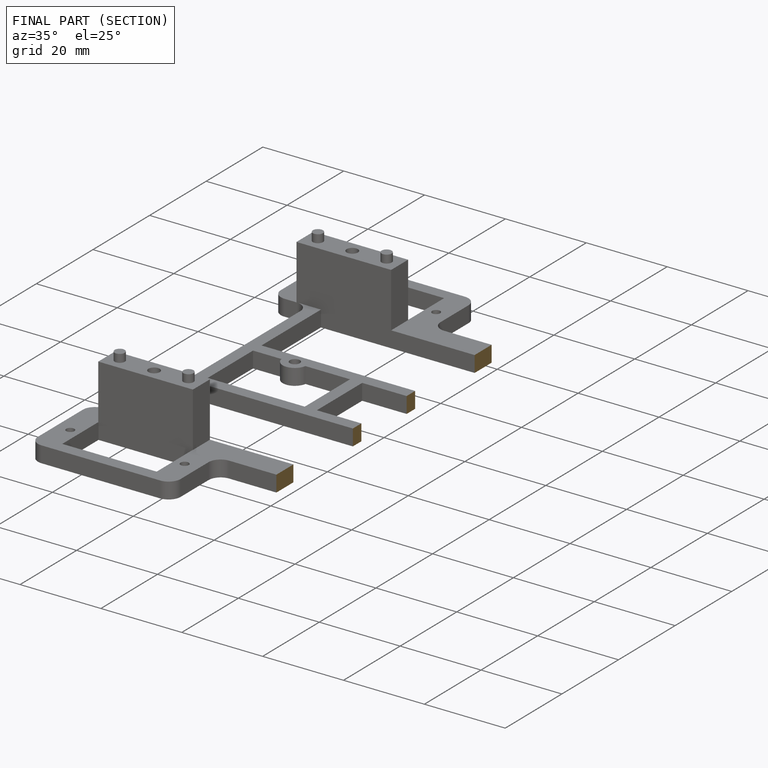
[diagram: finished part — half-section view (interior)]
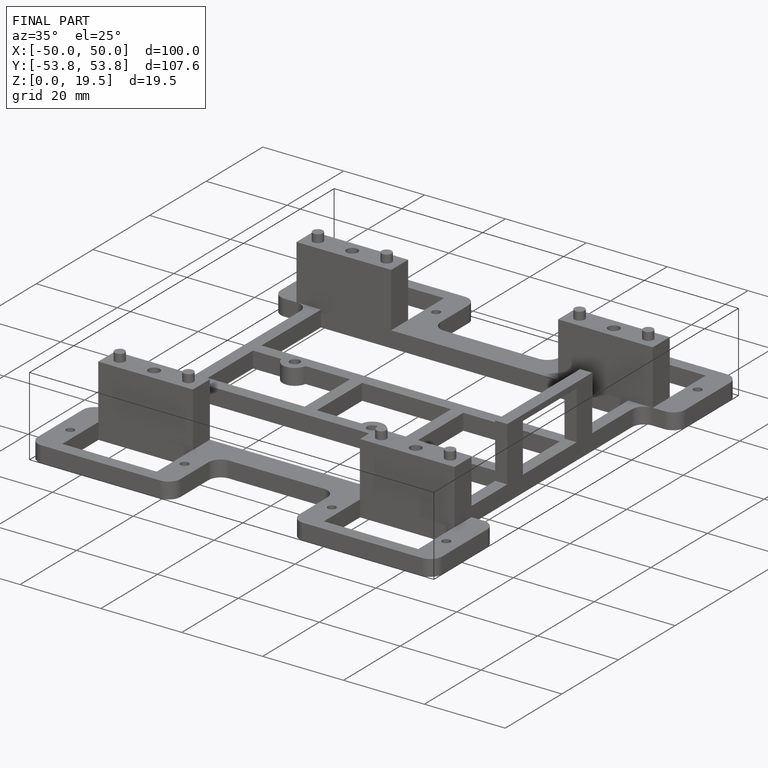
[diagram: finished part — iso view with bounding-box wireframe]
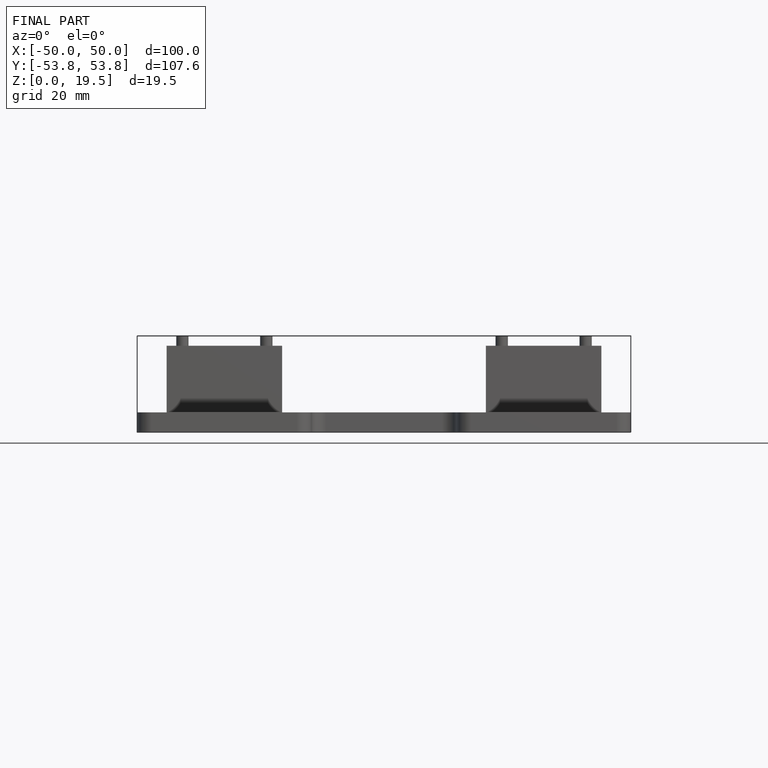
[diagram: finished part — front view with bounding-box wireframe]
